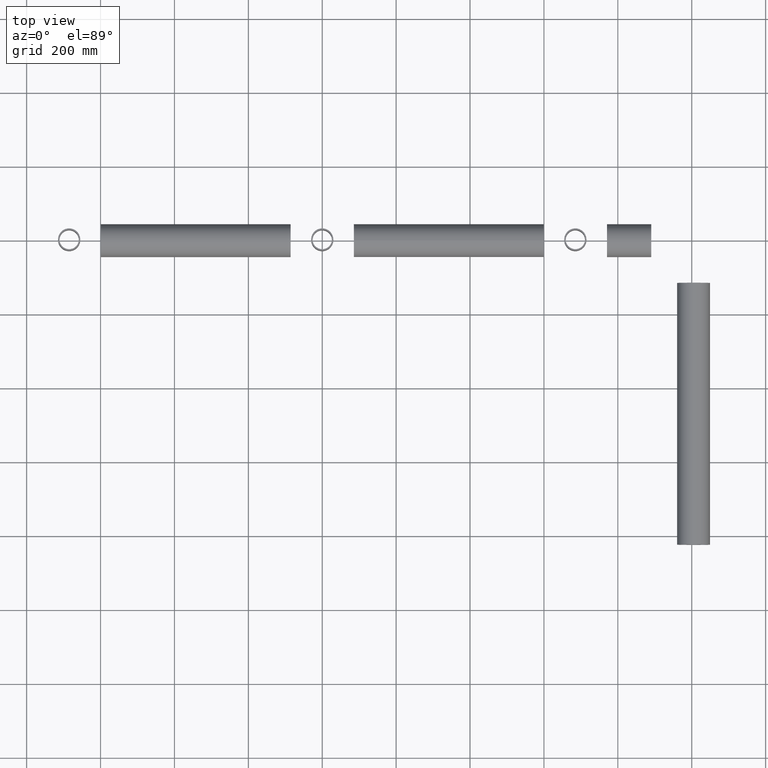
[diagram: clean part render]
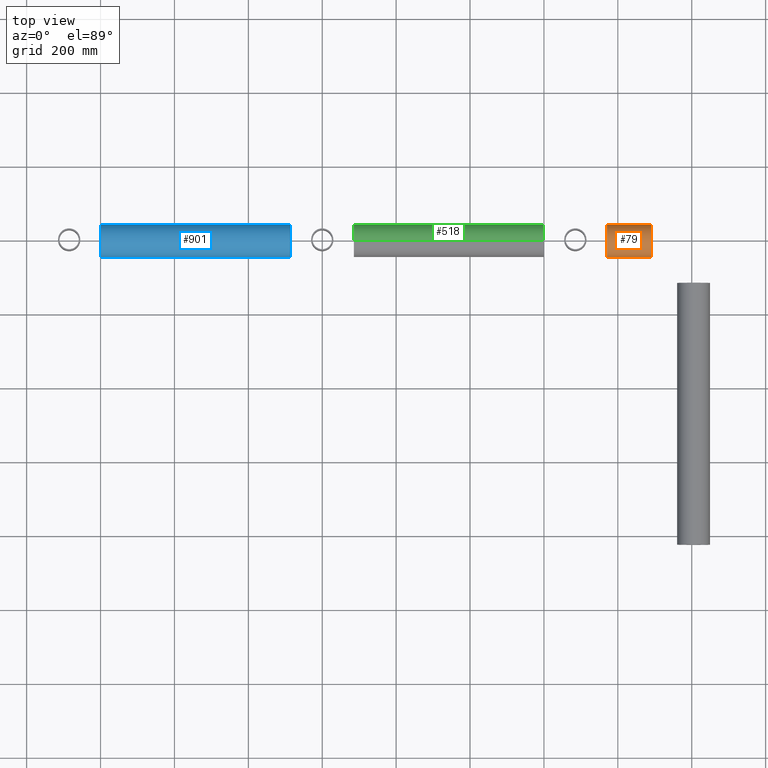
[diagram: same view with three faces highlighted in distinct colors, each labeled with its STEP entity id]
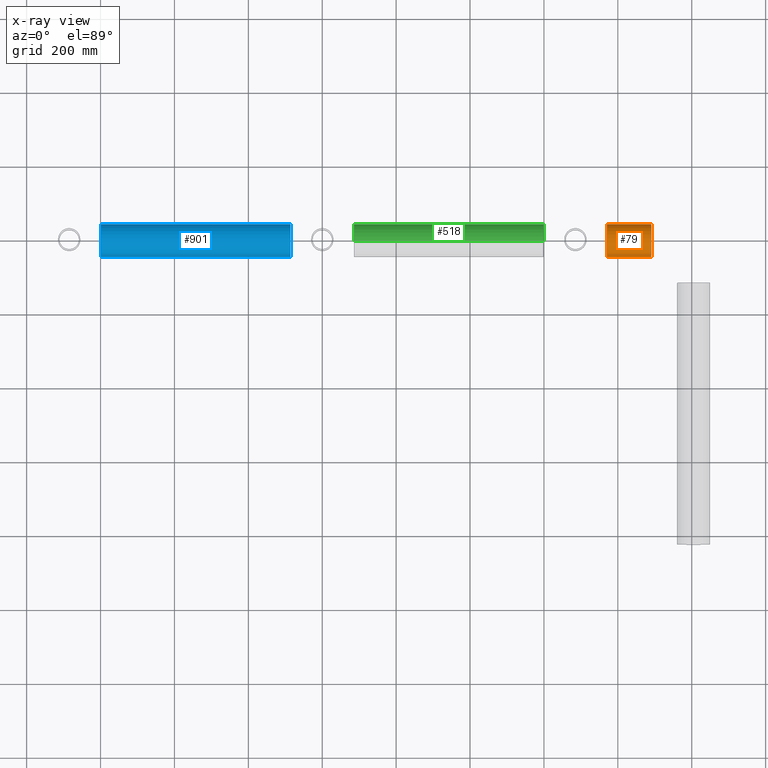
[diagram: x-ray of the same camera — body ghosted, the three highlighted faces saturated]
A machine part, top view with three faces highlighted in distinct colors.
The next image is the same camera in x-ray (body ghosted, the three faces saturated) — at least one of them is partly hidden behind the body in this view.
Their STEP definitions:

[orange] entity #79 — the highlighted cylindrical surface (edge-blend (fillet) strip) has radius 44.45 mm, axis along (1, 0, -0).
#15 = CARTESIAN_POINT ( 'NONE',  ( 770.7000000000000455, -3.148566920607844824E-14, 0.000000000000000000 ) ) ;
#21 = CIRCLE ( 'NONE', #918, 44.45000000000000995 ) ;
#65 = EDGE_CURVE ( 'NONE', #563, #332, #1062, .T. ) ;
#79 = ADVANCED_FACE ( 'NONE', ( #376 ), #582, .T. ) ;
#82 = ORIENTED_EDGE ( 'NONE', *, *, #65, .F. ) ;
#95 = CARTESIAN_POINT ( 'NONE',  ( 770.7000000000000455, 44.44999999999997442, 0.000000000000000000 ) ) ;
#120 = CARTESIAN_POINT ( 'NONE',  ( 890.5000000000001137, 44.45000000000000995, 0.000000000000000000 ) ) ;
#138 = ORIENTED_EDGE ( 'NONE', *, *, #583, .T. ) ;
#176 = CARTESIAN_POINT ( 'NONE',  ( 770.7000000000000455, -3.148566920607844824E-14, 0.000000000000000000 ) ) ;
#251 = DIRECTION ( 'NONE',  ( -1.000000000000000000, -1.361513478024022519E-17, 0.000000000000000000 ) ) ;
#296 = CARTESIAN_POINT ( 'NONE',  ( 770.7000000000000455, -44.45000000000003837, 5.443555022209988064E-15 ) ) ;
#318 = AXIS2_PLACEMENT_3D ( 'NONE', #15, #958, #776 ) ;
#332 = VERTEX_POINT ( 'NONE', #120 ) ;
#374 = AXIS2_PLACEMENT_3D ( 'NONE', #1064, #1151, #581 ) ;
#376 = FACE_OUTER_BOUND ( 'NONE', #672, .T. ) ;
#438 = CARTESIAN_POINT ( 'NONE',  ( 770.7000000000000455, -44.45000000000004547, 5.443555022209986486E-15 ) ) ;
#459 = ORIENTED_EDGE ( 'NONE', *, *, #562, .F. ) ;
#514 = VERTEX_POINT ( 'NONE', #951 ) ;
#562 = EDGE_CURVE ( 'NONE', #731, #563, #21, .T. ) ;
#563 = VERTEX_POINT ( 'NONE', #95 ) ;
#573 = CARTESIAN_POINT ( 'NONE',  ( 770.7000000000000455, 44.44999999999997442, 0.000000000000000000 ) ) ;
#581 = DIRECTION ( 'NONE',  ( 0.000000000000000000, -1.000000000000000000, 0.000000000000000000 ) ) ;
#582 = CYLINDRICAL_SURFACE ( 'NONE', #318, 44.45000000000000995 ) ;
#583 = EDGE_CURVE ( 'NONE', #731, #514, #648, .T. ) ;
#648 = LINE ( 'NONE', #438, #798 ) ;
#672 = EDGE_LOOP ( 'NONE', ( #459, #138, #1126, #82 ) ) ;
#731 = VERTEX_POINT ( 'NONE', #296 ) ;
#776 = DIRECTION ( 'NONE',  ( 0.000000000000000000, 1.000000000000000000, 0.000000000000000000 ) ) ;
#798 = VECTOR ( 'NONE', #870, 1000.000000000000000 ) ;
#870 = DIRECTION ( 'NONE',  ( 1.000000000000000000, 2.628186077302040120E-16, -0.000000000000000000 ) ) ;
#918 = AXIS2_PLACEMENT_3D ( 'NONE', #176, #251, #948 ) ;
#948 = DIRECTION ( 'NONE',  ( 0.000000000000000000, -1.000000000000000000, 0.000000000000000000 ) ) ;
#951 = CARTESIAN_POINT ( 'NONE',  ( 890.5000000000001137, -44.45000000000000995, 5.443555022209986486E-15 ) ) ;
#958 = DIRECTION ( 'NONE',  ( 1.000000000000000000, 2.628186077302040120E-16, -0.000000000000000000 ) ) ;
#1062 = LINE ( 'NONE', #573, #1220 ) ;
#1064 = CARTESIAN_POINT ( 'NONE',  ( 890.5000000000001137, 0.000000000000000000, 0.000000000000000000 ) ) ;
#1126 = ORIENTED_EDGE ( 'NONE', *, *, #1168, .T. ) ;
#1127 = CIRCLE ( 'NONE', #374, 44.45000000000000995 ) ;
#1136 = DIRECTION ( 'NONE',  ( 1.000000000000000000, 2.628186077302040120E-16, -0.000000000000000000 ) ) ;
#1151 = DIRECTION ( 'NONE',  ( -1.000000000000000000, -1.361513478024022519E-17, 0.000000000000000000 ) ) ;
#1168 = EDGE_CURVE ( 'NONE', #514, #332, #1127, .T. ) ;
#1220 = VECTOR ( 'NONE', #1136, 1000.000000000000000 ) ;

[blue] entity #901 — the highlighted cylindrical surface (edge-blend (fillet) strip) has radius 44.45 mm, axis along (1, 0, -0).
#22 = CARTESIAN_POINT ( 'NONE',  ( -599.3000000000000682, -44.45000000000001705, 5.443555022209986486E-15 ) ) ;
#69 = LINE ( 'NONE', #1125, #617 ) ;
#76 = VERTEX_POINT ( 'NONE', #390 ) ;
#102 = VERTEX_POINT ( 'NONE', #112 ) ;
#112 = CARTESIAN_POINT ( 'NONE',  ( -85.70000000000000284, -44.45000000000000995, 5.443555022209986486E-15 ) ) ;
#116 = LINE ( 'NONE', #22, #398 ) ;
#135 = CARTESIAN_POINT ( 'NONE',  ( -599.3000000000000682, -6.992733223131379957E-15, -2.091494006573643760E-63 ) ) ;
#146 = ORIENTED_EDGE ( 'NONE', *, *, #963, .F. ) ;
#164 = CIRCLE ( 'NONE', #1055, 44.45000000000000995 ) ;
#193 = ORIENTED_EDGE ( 'NONE', *, *, #1153, .T. ) ;
#196 = EDGE_LOOP ( 'NONE', ( #146, #193, #664, #1189 ) ) ;
#295 = CARTESIAN_POINT ( 'NONE',  ( -599.3000000000000682, -44.45000000000001705, 5.443555022209986486E-15 ) ) ;
#330 = DIRECTION ( 'NONE',  ( 0.000000000000000000, 1.000000000000000000, 0.000000000000000000 ) ) ;
#390 = CARTESIAN_POINT ( 'NONE',  ( -85.70000000000000284, 44.45000000000000995, -3.569429445832751550E-63 ) ) ;
#396 = CARTESIAN_POINT ( 'NONE',  ( -85.70000000000000284, -1.540743955509788682E-30, -5.047364885091860149E-63 ) ) ;
#398 = VECTOR ( 'NONE', #699, 1000.000000000000000 ) ;
#410 = DIRECTION ( 'NONE',  ( 0.000000000000000000, -1.000000000000000000, 0.000000000000000000 ) ) ;
#428 = DIRECTION ( 'NONE',  ( 1.000000000000000000, 1.361513478024022673E-17, -5.755200308641385394E-66 ) ) ;
#538 = DIRECTION ( 'NONE',  ( 0.000000000000000000, -1.000000000000000000, 0.000000000000000000 ) ) ;
#613 = AXIS2_PLACEMENT_3D ( 'NONE', #135, #1105, #410 ) ;
#617 = VECTOR ( 'NONE', #941, 1000.000000000000000 ) ;
#664 = ORIENTED_EDGE ( 'NONE', *, *, #678, .T. ) ;
#678 = EDGE_CURVE ( 'NONE', #102, #76, #164, .T. ) ;
#699 = DIRECTION ( 'NONE',  ( 1.000000000000000000, 1.361513478024022673E-17, -5.755200308641385394E-66 ) ) ;
#818 = CYLINDRICAL_SURFACE ( 'NONE', #1142, 44.45000000000000995 ) ;
#901 = ADVANCED_FACE ( 'NONE', ( #987 ), #818, .T. ) ;
#941 = DIRECTION ( 'NONE',  ( 1.000000000000000000, 1.361513478024022673E-17, -5.755200308641385394E-66 ) ) ;
#963 = EDGE_CURVE ( 'NONE', #1167, #1119, #1203, .T. ) ;
#975 = DIRECTION ( 'NONE',  ( -1.000000000000000000, -1.361513478024022673E-17, 5.755200308641385394E-66 ) ) ;
#987 = FACE_OUTER_BOUND ( 'NONE', #196, .T. ) ;
#1055 = AXIS2_PLACEMENT_3D ( 'NONE', #396, #975, #538 ) ;
#1094 = CARTESIAN_POINT ( 'NONE',  ( -599.3000000000000682, -6.992733223131379957E-15, -2.091494006573643760E-63 ) ) ;
#1105 = DIRECTION ( 'NONE',  ( -1.000000000000000000, -1.361513478024022673E-17, 5.755200308641385394E-66 ) ) ;
#1115 = EDGE_CURVE ( 'NONE', #1119, #76, #69, .T. ) ;
#1119 = VERTEX_POINT ( 'NONE', #1197 ) ;
#1125 = CARTESIAN_POINT ( 'NONE',  ( -599.3000000000000682, 44.45000000000000284, -2.091494006573643760E-63 ) ) ;
#1142 = AXIS2_PLACEMENT_3D ( 'NONE', #1094, #428, #330 ) ;
#1153 = EDGE_CURVE ( 'NONE', #1167, #102, #116, .T. ) ;
#1167 = VERTEX_POINT ( 'NONE', #295 ) ;
#1189 = ORIENTED_EDGE ( 'NONE', *, *, #1115, .F. ) ;
#1197 = CARTESIAN_POINT ( 'NONE',  ( -599.3000000000000682, 44.45000000000000284, -3.569429445832751550E-63 ) ) ;
#1203 = CIRCLE ( 'NONE', #613, 44.45000000000000995 ) ;

[green] entity #518 — the highlighted cylindrical surface (edge-blend (fillet) strip) has radius 44.45 mm, axis along (1, 0, -0).
#17 = ORIENTED_EDGE ( 'NONE', *, *, #692, .F. ) ;
#29 = DIRECTION ( 'NONE',  ( 1.000000000000000000, 0.000000000000000000, -1.111127439881452138E-69 ) ) ;
#33 = DIRECTION ( 'NONE',  ( 1.000000000000000000, 0.000000000000000000, -1.111127439881452138E-69 ) ) ;
#50 = VECTOR ( 'NONE', #686, 1000.000000000000000 ) ;
#84 = CARTESIAN_POINT ( 'NONE',  ( 599.3000000000000682, 0.000000000000000000, 4.529209264070215932E-65 ) ) ;
#142 = CARTESIAN_POINT ( 'NONE',  ( 85.70000000000000284, 0.000000000000000000, -44.45000000000000995 ) ) ;
#212 = DIRECTION ( 'NONE',  ( 0.000000000000000000, 0.000000000000000000, -1.000000000000000000 ) ) ;
#242 = CIRCLE ( 'NONE', #337, 44.45000000000000995 ) ;
#265 = ORIENTED_EDGE ( 'NONE', *, *, #1217, .T. ) ;
#285 = EDGE_CURVE ( 'NONE', #378, #1053, #773, .T. ) ;
#314 = VERTEX_POINT ( 'NONE', #701 ) ;
#337 = AXIS2_PLACEMENT_3D ( 'NONE', #786, #392, #1158 ) ;
#346 = DIRECTION ( 'NONE',  ( 0.000000000000000000, -1.000000000000000000, -6.528202825209861639E-66 ) ) ;
#353 = CARTESIAN_POINT ( 'NONE',  ( 599.3000000000000682, 5.443555022209986486E-15, 44.45000000000000995 ) ) ;
#378 = VERTEX_POINT ( 'NONE', #353 ) ;
#392 = DIRECTION ( 'NONE',  ( -1.000000000000000000, -1.361513478024022519E-17, 4.159575351272847437E-68 ) ) ;
#497 = CARTESIAN_POINT ( 'NONE',  ( 85.70000000000000284, 5.443555022209986486E-15, 44.45000000000000995 ) ) ;
#518 = ADVANCED_FACE ( 'NONE', ( #871 ), #574, .T. ) ;
#529 = AXIS2_PLACEMENT_3D ( 'NONE', #84, #894, #346 ) ;
#574 = CYLINDRICAL_SURFACE ( 'NONE', #968, 44.45000000000000995 ) ;
#593 = ORIENTED_EDGE ( 'NONE', *, *, #285, .T. ) ;
#599 = CARTESIAN_POINT ( 'NONE',  ( 85.70000000000000284, -2.517344808156641213E-83, -44.45000000000000995 ) ) ;
#640 = EDGE_CURVE ( 'NONE', #314, #661, #242, .T. ) ;
#644 = CARTESIAN_POINT ( 'NONE',  ( 599.3000000000000682, -2.517344808156641213E-83, -44.45000000000000995 ) ) ;
#661 = VERTEX_POINT ( 'NONE', #599 ) ;
#686 = DIRECTION ( 'NONE',  ( 1.000000000000000000, 0.000000000000000000, -1.111127439881452138E-69 ) ) ;
#692 = EDGE_CURVE ( 'NONE', #661, #1053, #1193, .T. ) ;
#701 = CARTESIAN_POINT ( 'NONE',  ( 85.70000000000000284, 5.443555022209986486E-15, 44.45000000000000995 ) ) ;
#725 = ORIENTED_EDGE ( 'NONE', *, *, #640, .F. ) ;
#773 = CIRCLE ( 'NONE', #529, 44.45000000000000995 ) ;
#786 = CARTESIAN_POINT ( 'NONE',  ( 85.70000000000000284, 0.000000000000000000, 4.586276769382526843E-65 ) ) ;
#871 = FACE_OUTER_BOUND ( 'NONE', #925, .T. ) ;
#894 = DIRECTION ( 'NONE',  ( -1.000000000000000000, -1.361513478024022519E-17, 4.159575351272847437E-68 ) ) ;
#925 = EDGE_LOOP ( 'NONE', ( #725, #265, #593, #17 ) ) ;
#957 = CARTESIAN_POINT ( 'NONE',  ( 85.70000000000000284, 0.000000000000000000, 4.586276769382526843E-65 ) ) ;
#968 = AXIS2_PLACEMENT_3D ( 'NONE', #957, #29, #212 ) ;
#1053 = VERTEX_POINT ( 'NONE', #644 ) ;
#1098 = VECTOR ( 'NONE', #33, 1000.000000000000000 ) ;
#1158 = DIRECTION ( 'NONE',  ( 0.000000000000000000, -1.000000000000000000, -6.528202825209861639E-66 ) ) ;
#1161 = LINE ( 'NONE', #497, #50 ) ;
#1193 = LINE ( 'NONE', #142, #1098 ) ;
#1217 = EDGE_CURVE ( 'NONE', #314, #378, #1161, .T. ) ;